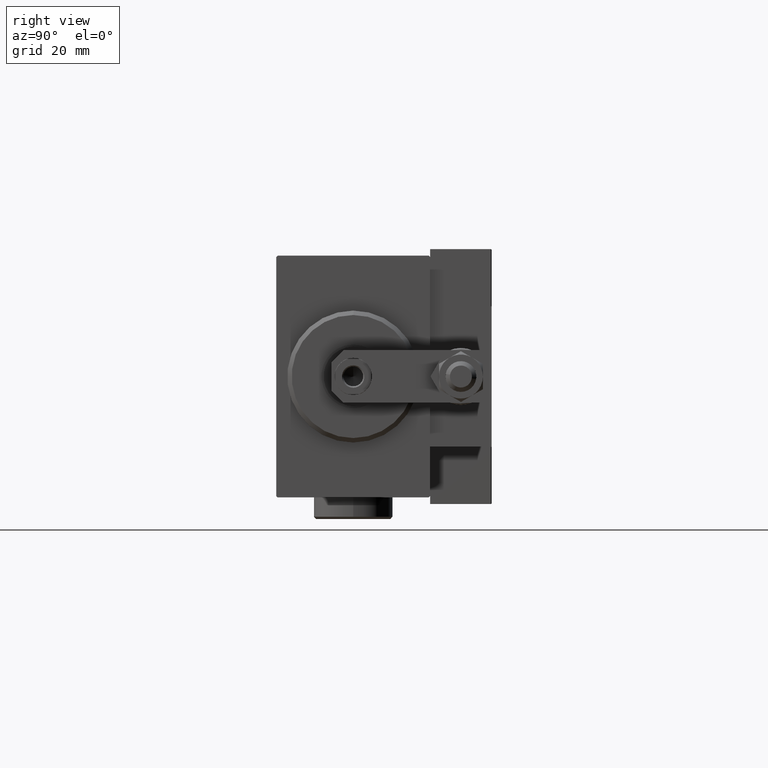
[diagram: clean part render]
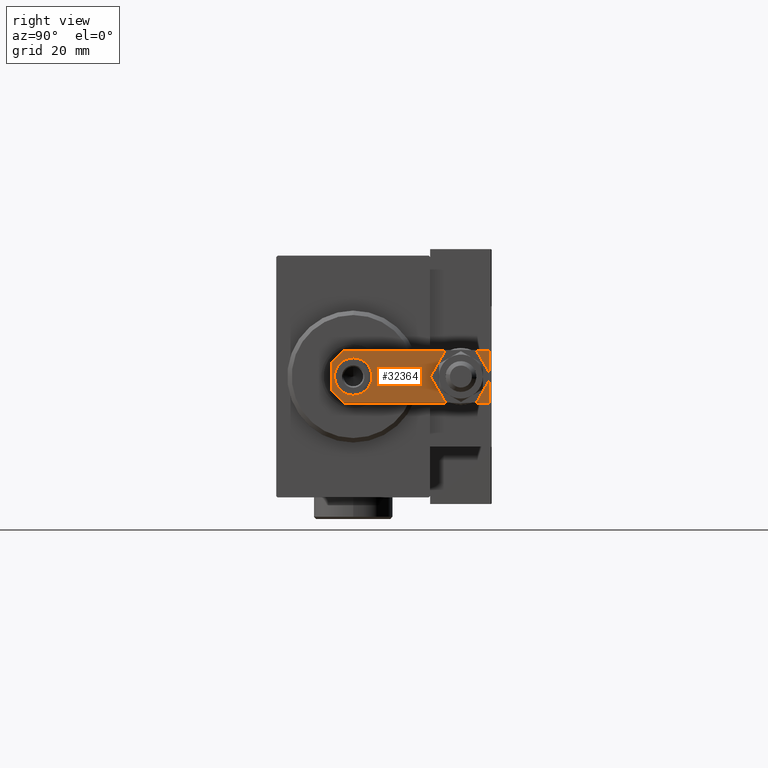
[diagram: same view with one face highlighted and labeled with its STEP entity id]
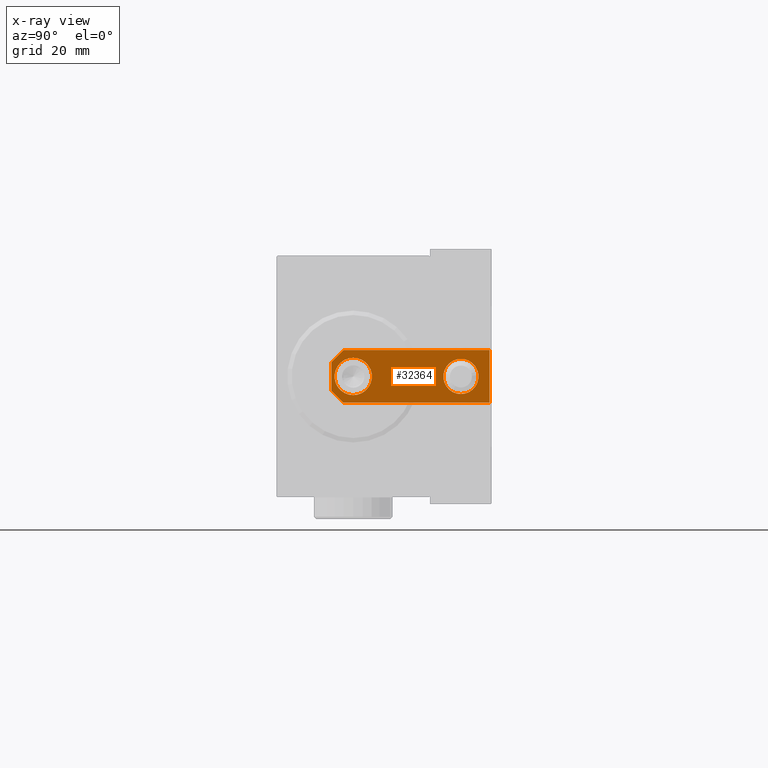
[diagram: x-ray of the same camera — body ghosted, the highlighted face saturated]
A machine part, right view. The second image highlights one B-rep face of the part: STEP entity #32364.
The next image is the same camera in x-ray: the body ghosted, the highlighted face saturated — about 0% of this face is hidden behind the body in this view.
In plain terms, the highlighted planar face has unit normal (1, 0, -0).
Its self-contained STEP definition (entity closure, byte-faithful):
#590 = DIRECTION ( 'NONE',  ( 0.000000000000000000, 0.000000000000000000, 1.000000000000000000 ) ) ;
#1194 = LINE ( 'NONE', #13397, #2607 ) ;
#1532 = VERTEX_POINT ( 'NONE', #48921 ) ;
#1847 = ORIENTED_EDGE ( 'NONE', *, *, #33843, .F. ) ;
#2149 = VERTEX_POINT ( 'NONE', #36302 ) ;
#2309 = VERTEX_POINT ( 'NONE', #51371 ) ;
#2398 = VERTEX_POINT ( 'NONE', #13326 ) ;
#2607 = VECTOR ( 'NONE', #28500, 1000.000000000000000 ) ;
#3706 = VECTOR ( 'NONE', #44364, 1000.000000000000000 ) ;
#3752 = FACE_OUTER_BOUND ( 'NONE', #8367, .T. ) ;
#4099 = ORIENTED_EDGE ( 'NONE', *, *, #23988, .F. ) ;
#4165 = CARTESIAN_POINT ( 'NONE',  ( -4.000000000000000000, 29.50000000000000000, 5.000000000000000000 ) ) ;
#4890 = EDGE_LOOP ( 'NONE', ( #30959, #47820 ) ) ;
#6090 = CARTESIAN_POINT ( 'NONE',  ( 4.250000000000000000, 5.000000000000001776, 5.000000000000000000 ) ) ;
#7787 = DIRECTION ( 'NONE',  ( 1.000000000000000000, 0.000000000000000000, 0.000000000000000000 ) ) ;
#7900 = CIRCLE ( 'NONE', #51106, 4.000000000000000000 ) ;
#7941 = ORIENTED_EDGE ( 'NONE', *, *, #22241, .T. ) ;
#8367 = EDGE_LOOP ( 'NONE', ( #22073, #51287, #48560, #7941, #39802, #38190 ) ) ;
#8377 = AXIS2_PLACEMENT_3D ( 'NONE', #34229, #14465, #22533 ) ;
#8540 = VERTEX_POINT ( 'NONE', #31436 ) ;
#9570 = AXIS2_PLACEMENT_3D ( 'NONE', #20843, #590, #45046 ) ;
#10460 = EDGE_CURVE ( 'NONE', #10818, #28036, #17037, .T. ) ;
#10818 = VERTEX_POINT ( 'NONE', #4165 ) ;
#11535 = FACE_BOUND ( 'NONE', #4890, .T. ) ;
#11677 = CARTESIAN_POINT ( 'NONE',  ( -5.999999999999995559, 0.000000000000000000, 5.000000000000000000 ) ) ;
#11873 = DIRECTION ( 'NONE',  ( 3.614007241618348278E-16, 1.000000000000000000, 0.000000000000000000 ) ) ;
#13326 = CARTESIAN_POINT ( 'NONE',  ( -4.250000000000000000, 5.000000000000000888, 5.000000000000000000 ) ) ;
#13397 = CARTESIAN_POINT ( 'NONE',  ( 6.000000000000008882, 36.00000000000000000, 5.000000000000000000 ) ) ;
#13424 = VERTEX_POINT ( 'NONE', #36895 ) ;
#14465 = DIRECTION ( 'NONE',  ( 0.000000000000000000, 0.000000000000000000, 1.000000000000000000 ) ) ;
#14548 = VECTOR ( 'NONE', #11873, 1000.000000000000000 ) ;
#15841 = CIRCLE ( 'NONE', #8377, 4.250000000000000000 ) ;
#15954 = FACE_BOUND ( 'NONE', #30326, .T. ) ;
#17037 = CIRCLE ( 'NONE', #9570, 4.000000000000000000 ) ;
#19093 = DIRECTION ( 'NONE',  ( 1.000000000000000000, 0.000000000000000000, 0.000000000000000000 ) ) ;
#19944 = DIRECTION ( 'NONE',  ( -1.204669080539449344E-16, -1.000000000000000000, 0.000000000000000000 ) ) ;
#20781 = CARTESIAN_POINT ( 'NONE',  ( 4.000000000000000000, 29.50000000000000000, 5.000000000000000000 ) ) ;
#20843 = CARTESIAN_POINT ( 'NONE',  ( 0.000000000000000000, 29.50000000000000000, 5.000000000000000000 ) ) ;
#22073 = ORIENTED_EDGE ( 'NONE', *, *, #26909, .T. ) ;
#22172 = DIRECTION ( 'NONE',  ( 1.000000000000000000, 0.000000000000000000, 0.000000000000000000 ) ) ;
#22241 = EDGE_CURVE ( 'NONE', #50382, #13424, #49533, .T. ) ;
#22533 = DIRECTION ( 'NONE',  ( 1.000000000000000000, 0.000000000000000000, 0.000000000000000000 ) ) ;
#23988 = EDGE_CURVE ( 'NONE', #46717, #2398, #15841, .T. ) ;
#24507 = CARTESIAN_POINT ( 'NONE',  ( 3.199999999999986855, 0.000000000000000000, 5.000000000000000000 ) ) ;
#25331 = DIRECTION ( 'NONE',  ( 0.7071067811865487940, 0.7071067811865463515, -0.000000000000000000 ) ) ;
#26909 = EDGE_CURVE ( 'NONE', #2149, #1532, #31904, .T. ) ;
#28036 = VERTEX_POINT ( 'NONE', #20781 ) ;
#28490 = LINE ( 'NONE', #40711, #3706 ) ;
#28500 = DIRECTION ( 'NONE',  ( -1.000000000000000000, 0.000000000000000000, 0.000000000000000000 ) ) ;
#28636 = CARTESIAN_POINT ( 'NONE',  ( 0.000000000000000000, 29.50000000000000000, 5.000000000000000000 ) ) ;
#29051 = VECTOR ( 'NONE', #25331, 1000.000000000000000 ) ;
#30326 = EDGE_LOOP ( 'NONE', ( #1847, #4099 ) ) ;
#30959 = ORIENTED_EDGE ( 'NONE', *, *, #10460, .F. ) ;
#31436 = CARTESIAN_POINT ( 'NONE',  ( 6.000000000000008882, 36.00000000000000000, 5.000000000000000000 ) ) ;
#31904 = LINE ( 'NONE', #43369, #47537 ) ;
#32364 = ADVANCED_FACE ( 'NONE', ( #11535, #3752, #15954 ), #35483, .T. ) ;
#32703 = LINE ( 'NONE', #11677, #39508 ) ;
#33843 = EDGE_CURVE ( 'NONE', #2398, #46717, #46949, .T. ) ;
#34229 = CARTESIAN_POINT ( 'NONE',  ( 1.925929944387235853E-31, 5.000000000000000888, 5.000000000000000000 ) ) ;
#34787 = LINE ( 'NONE', #50674, #14548 ) ;
#35246 = EDGE_CURVE ( 'NONE', #13424, #8540, #34787, .T. ) ;
#35483 = PLANE ( 'NONE',  #45220 ) ;
#35983 = DIRECTION ( 'NONE',  ( -0.000000000000000000, 0.000000000000000000, 1.000000000000000000 ) ) ;
#36302 = CARTESIAN_POINT ( 'NONE',  ( -5.999999999999991118, 36.00000000000000000, 5.000000000000000000 ) ) ;
#36869 = EDGE_CURVE ( 'NONE', #1532, #2309, #28490, .T. ) ;
#36895 = CARTESIAN_POINT ( 'NONE',  ( 5.999999999999996447, 2.799999999999997158, 5.000000000000000000 ) ) ;
#37461 = DIRECTION ( 'NONE',  ( 1.000000000000000000, 0.000000000000000000, 0.000000000000000000 ) ) ;
#38190 = ORIENTED_EDGE ( 'NONE', *, *, #41647, .T. ) ;
#38256 = EDGE_CURVE ( 'NONE', #28036, #10818, #7900, .T. ) ;
#38587 = EDGE_CURVE ( 'NONE', #2309, #50382, #32703, .T. ) ;
#39508 = VECTOR ( 'NONE', #7787, 1000.000000000000000 ) ;
#39802 = ORIENTED_EDGE ( 'NONE', *, *, #35246, .T. ) ;
#40711 = CARTESIAN_POINT ( 'NONE',  ( -1.600000000000003197, -1.599999999999997646, 5.000000000000000000 ) ) ;
#41647 = EDGE_CURVE ( 'NONE', #8540, #2149, #1194, .T. ) ;
#41686 = DIRECTION ( 'NONE',  ( 0.000000000000000000, 0.000000000000000000, 1.000000000000000000 ) ) ;
#41711 = CARTESIAN_POINT ( 'NONE',  ( 1.599999999999989653, -1.599999999999995204, 5.000000000000000000 ) ) ;
#41963 = AXIS2_PLACEMENT_3D ( 'NONE', #42711, #41686, #22172 ) ;
#42711 = CARTESIAN_POINT ( 'NONE',  ( 1.925929944387235853E-31, 5.000000000000000888, 5.000000000000000000 ) ) ;
#43279 = CARTESIAN_POINT ( 'NONE',  ( 0.000000000000000000, 0.000000000000000000, 5.000000000000000000 ) ) ;
#43369 = CARTESIAN_POINT ( 'NONE',  ( -5.999999999999991118, 36.00000000000000000, 5.000000000000000000 ) ) ;
#44364 = DIRECTION ( 'NONE',  ( 0.7071067811865463515, -0.7071067811865487940, 0.000000000000000000 ) ) ;
#44510 = DIRECTION ( 'NONE',  ( 0.000000000000000000, 0.000000000000000000, 1.000000000000000000 ) ) ;
#45046 = DIRECTION ( 'NONE',  ( 1.000000000000000000, 0.000000000000000000, 0.000000000000000000 ) ) ;
#45220 = AXIS2_PLACEMENT_3D ( 'NONE', #43279, #35983, #19093 ) ;
#46717 = VERTEX_POINT ( 'NONE', #6090 ) ;
#46949 = CIRCLE ( 'NONE', #41963, 4.250000000000000000 ) ;
#47537 = VECTOR ( 'NONE', #19944, 1000.000000000000000 ) ;
#47820 = ORIENTED_EDGE ( 'NONE', *, *, #38256, .F. ) ;
#48560 = ORIENTED_EDGE ( 'NONE', *, *, #38587, .T. ) ;
#48921 = CARTESIAN_POINT ( 'NONE',  ( -5.999999999999995559, 2.800000000000010925, 5.000000000000000000 ) ) ;
#49533 = LINE ( 'NONE', #41711, #29051 ) ;
#50382 = VERTEX_POINT ( 'NONE', #24507 ) ;
#50674 = CARTESIAN_POINT ( 'NONE',  ( 5.999999999999995559, 0.000000000000000000, 5.000000000000000000 ) ) ;
#51106 = AXIS2_PLACEMENT_3D ( 'NONE', #28636, #44510, #37461 ) ;
#51287 = ORIENTED_EDGE ( 'NONE', *, *, #36869, .T. ) ;
#51371 = CARTESIAN_POINT ( 'NONE',  ( -3.199999999999995737, 0.000000000000000000, 5.000000000000000000 ) ) ;